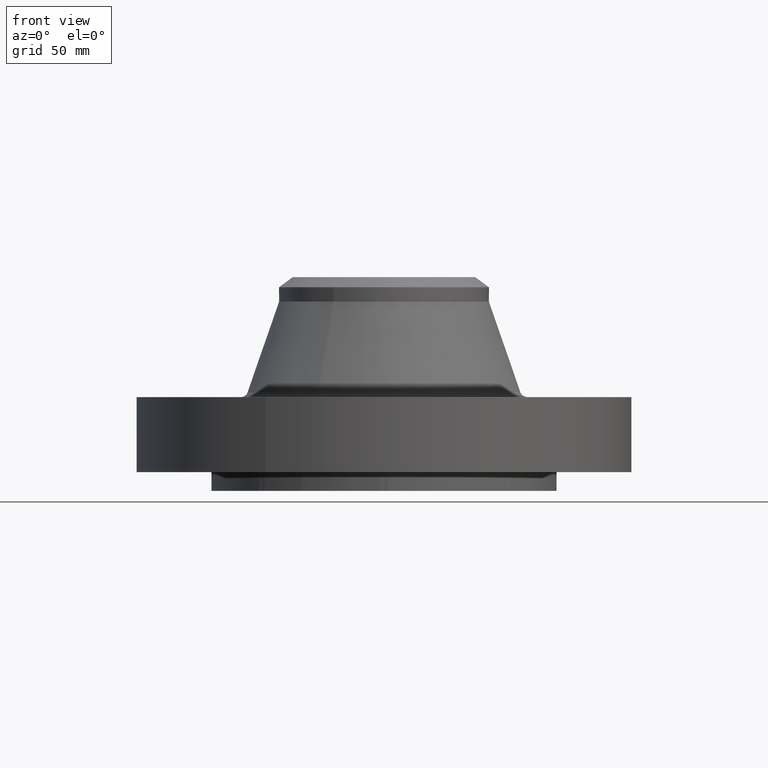
[diagram: clean part render]
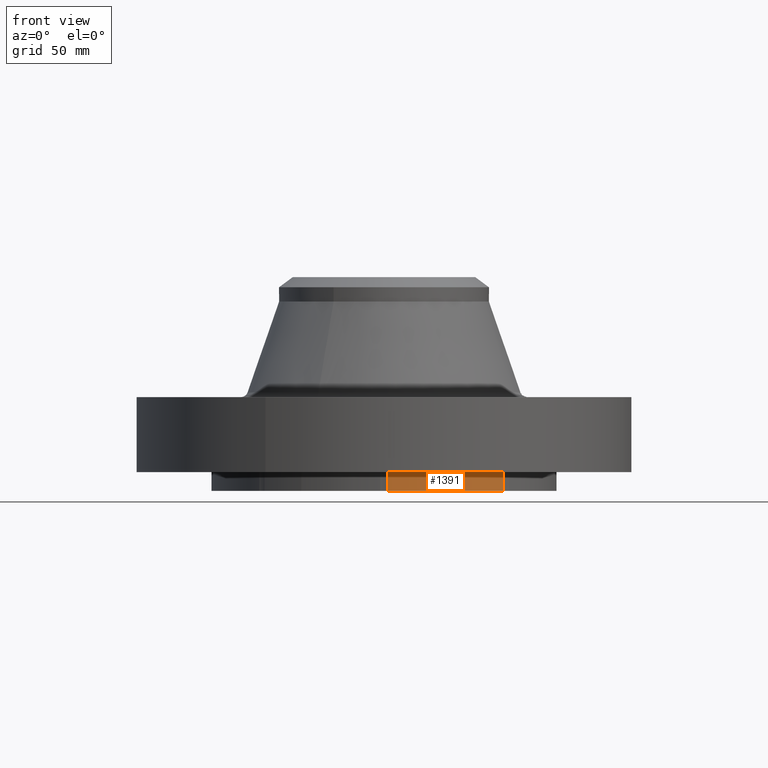
[diagram: same view with one face highlighted and labeled with its STEP entity id]
A machine part, front view. The second image highlights one B-rep face of the part: STEP entity #1391.
In plain terms, the highlighted cylindrical surface (partial cylindrical patch) has radius 73.025 mm, axis along (0, 0, -1).
Its self-contained STEP definition (entity closure, byte-faithful):
#376=AXIS2_PLACEMENT_3D('Circle Axis2P3D',#374,#375,$) ;
#709=AXIS2_PLACEMENT_3D('Circle Axis2P3D',#707,#708,$) ;
#903=AXIS2_PLACEMENT_3D('Cylinder Axis2P3D',#900,#901,#902) ;
#371=CARTESIAN_POINT('Vertex',(0.061640903685,-2.87433912388,-2.60212498967E-011)) ;
#374=CARTESIAN_POINT('Axis2P3D Location',(2.35276365319E-010,-3.52486264149E-010,0.)) ;
#378=CARTESIAN_POINT('Vertex',(1.98887798493,-2.07605138692,-2.60212498967E-011)) ;
#704=CARTESIAN_POINT('Vertex',(1.98887798493,-2.07605138692,-0.312999999983)) ;
#707=CARTESIAN_POINT('Axis2P3D Location',(-6.398773025E-011,1.17691892977E-010,-0.313000000001)) ;
#711=CARTESIAN_POINT('Vertex',(0.061640903685,-2.87433912388,-0.312999999983)) ;
#900=CARTESIAN_POINT('Axis2P3D Location',(0.,0.,1.46850000001)) ;
#1333=CARTESIAN_POINT('Line Origine',(0.0616409036858,-2.87433912388,0.468500000021)) ;
#1380=CARTESIAN_POINT('Line Origine',(1.98887798493,-2.07605138692,-0.156500000005)) ;
#375=DIRECTION('Axis2P3D Direction',(0.,0.,-0.0393700787402)) ;
#708=DIRECTION('Axis2P3D Direction',(0.,0.,-0.0393700787402)) ;
#901=DIRECTION('Axis2P3D Direction',(0.,0.,-0.0393700787402)) ;
#902=DIRECTION('Axis2P3D XDirection',(0.0272355766508,-0.0284293240248,0.)) ;
#1334=DIRECTION('Vector Direction',(0.,0.,-0.0393700787402)) ;
#1381=DIRECTION('Vector Direction',(0.,0.,-0.0393700787402)) ;
#1335=VECTOR('Line Direction',#1334,0.0393700787402) ;
#1382=VECTOR('Line Direction',#1381,0.0393700787402) ;
#1386=ORIENTED_EDGE('',*,*,#713,.F.) ;
#1387=ORIENTED_EDGE('',*,*,#1384,.F.) ;
#1388=ORIENTED_EDGE('',*,*,#380,.T.) ;
#1389=ORIENTED_EDGE('',*,*,#1337,.T.) ;
#1391=ADVANCED_FACE('PartBody',(#1390),#904,.T.) ;
#377=CIRCLE('generated circle',#376,2.87499999962) ;
#710=CIRCLE('generated circle',#709,2.87500000015) ;
#904=CYLINDRICAL_SURFACE('generated cylinder',#903,2.87500000001) ;
#380=EDGE_CURVE('',#379,#372,#377,.T.) ;
#713=EDGE_CURVE('',#705,#712,#710,.T.) ;
#1337=EDGE_CURVE('',#372,#712,#1336,.T.) ;
#1384=EDGE_CURVE('',#379,#705,#1383,.T.) ;
#1385=EDGE_LOOP('',(#1386,#1387,#1388,#1389)) ;
#1390=FACE_OUTER_BOUND('',#1385,.T.) ;
#1336=LINE('Line',#1333,#1335) ;
#1383=LINE('Line',#1380,#1382) ;
#372=VERTEX_POINT('',#371) ;
#379=VERTEX_POINT('',#378) ;
#705=VERTEX_POINT('',#704) ;
#712=VERTEX_POINT('',#711) ;